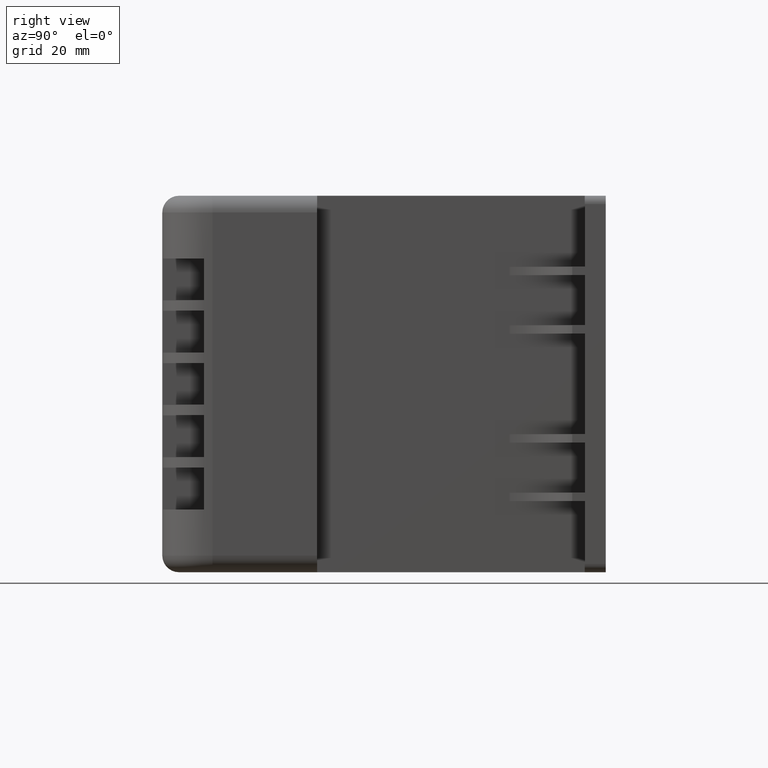
[diagram: clean part render]
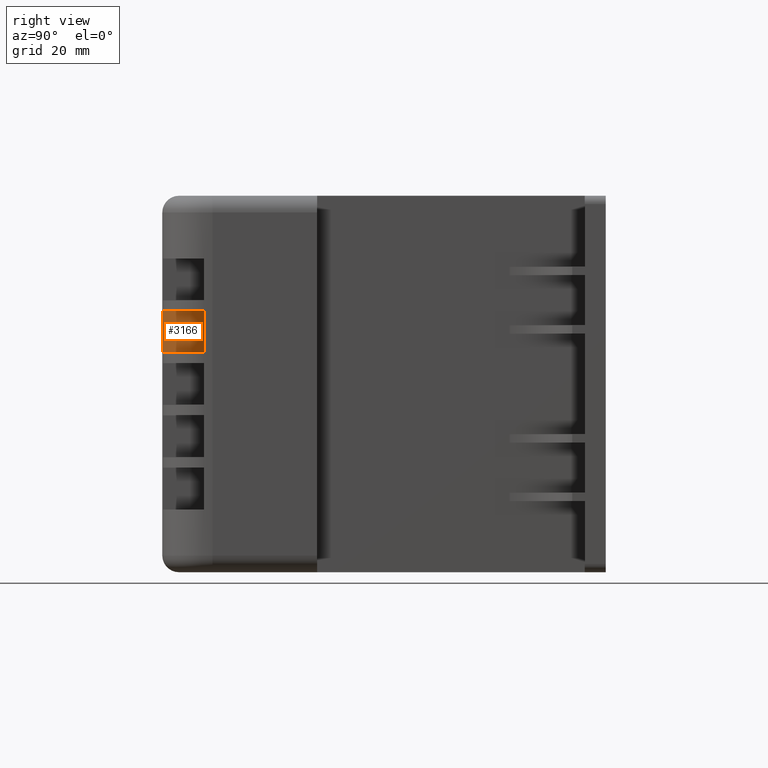
[diagram: same view with one face highlighted and labeled with its STEP entity id]
A machine part, right view. The second image highlights one B-rep face of the part: STEP entity #3166.
In plain terms, the highlighted planar face has unit normal (1, -0, 0).
Its self-contained STEP definition (entity closure, byte-faithful):
#297=FACE_OUTER_BOUND('',#492,.T.);
#492=EDGE_LOOP('',(#2202,#2203,#2204,#2205));
#727=LINE('',#4907,#1031);
#741=LINE('',#4945,#1045);
#742=LINE('',#4947,#1046);
#743=LINE('',#4948,#1047);
#1031=VECTOR('',#4021,10.);
#1045=VECTOR('',#4055,10.);
#1046=VECTOR('',#4056,10.);
#1047=VECTOR('',#4057,10.);
#1343=VERTEX_POINT('',#4904);
#1344=VERTEX_POINT('',#4906);
#1358=VERTEX_POINT('',#4944);
#1359=VERTEX_POINT('',#4946);
#1660=EDGE_CURVE('',#1343,#1344,#727,.T.);
#1679=EDGE_CURVE('',#1343,#1358,#741,.T.);
#1680=EDGE_CURVE('',#1359,#1358,#742,.T.);
#1681=EDGE_CURVE('',#1344,#1359,#743,.T.);
#2202=ORIENTED_EDGE('',*,*,#1660,.F.);
#2203=ORIENTED_EDGE('',*,*,#1679,.T.);
#2204=ORIENTED_EDGE('',*,*,#1680,.F.);
#2205=ORIENTED_EDGE('',*,*,#1681,.F.);
#2800=PLANE('',#3523);
#3166=ADVANCED_FACE('',(#297),#2800,.T.);
#3523=AXIS2_PLACEMENT_3D('',#4943,#4053,#4054);
#4021=DIRECTION('',(3.94745964311167E-16,0.,1.));
#4053=DIRECTION('center_axis',(-1.,0.,7.89491928622333E-16));
#4054=DIRECTION('ref_axis',(-7.89491928622334E-16,0.,-1.));
#4055=DIRECTION('',(0.,-1.,0.));
#4056=DIRECTION('',(-7.89491928622334E-16,0.,-1.));
#4057=DIRECTION('',(0.,-1.,0.));
#4904=CARTESIAN_POINT('',(-85.,36.8321595661992,52.5));
#4906=CARTESIAN_POINT('',(-84.9999999999999,36.8321595661992,62.5));
#4907=CARTESIAN_POINT('',(-85.,36.8321595661992,22.5));
#4943=CARTESIAN_POINT('Origin',(-84.9999999999999,37.,62.5));
#4944=CARTESIAN_POINT('',(-85.,27.,52.5));
#4945=CARTESIAN_POINT('',(-85.,37.,52.5));
#4946=CARTESIAN_POINT('',(-84.9999999999999,27.,62.5));
#4947=CARTESIAN_POINT('',(-85.,27.,52.5));
#4948=CARTESIAN_POINT('',(-84.9999999999999,37.,62.5));